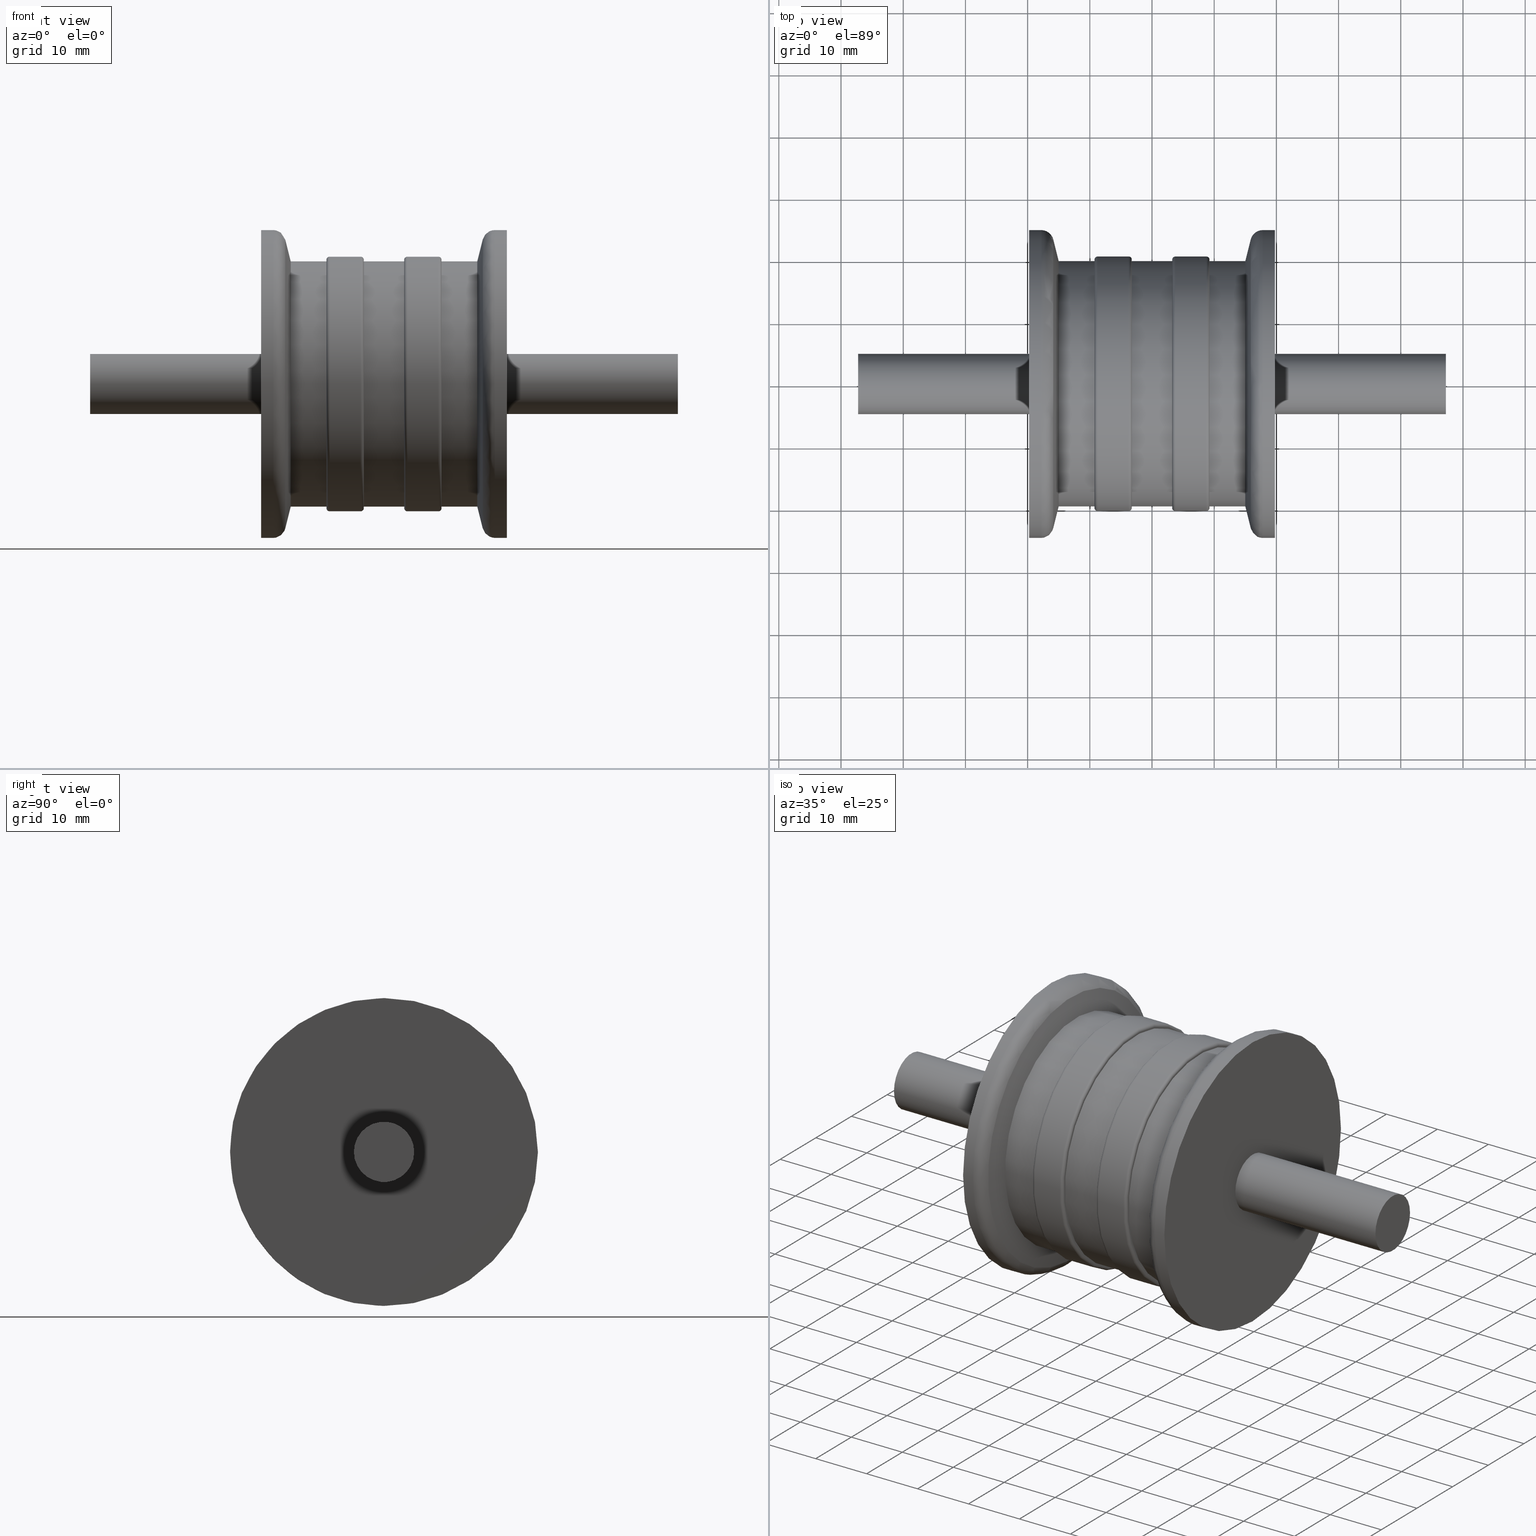
[diagram: canonical four-view strip — front | top / right | iso, engineering-drawing reading convention]
A machine part, canonical four-view strip (front | top / right | iso — engineering-drawing reading convention). The complete STEP part file that produces these views, byte-faithful:
ISO-10303-21;
HEADER;
/* Generated by software containing ST-Developer
 * from STEP Tools, Inc. (www.steptools.com) 
 */

FILE_DESCRIPTION(
/* description */ (''),
/* implementation_level */ '2;1');

FILE_NAME(
/* name */ 
'\\\\SYNOLOGYNAS\\web\\db2\\PR8-M10-D50-H40\\\X2\B3C4BA74\X0\\\PR8-M10
-D50-H40.stp',
/* time_stamp */ '2025-04-24T11:50:34+09:00',
/* author */ ('user'),
/* organization */ (''),
/* preprocessor_version */ 'ST-DEVELOPER v15.6',
/* originating_system */ 'Autodesk Inventor 2015',
/* authorisation */ '');

FILE_SCHEMA (('AUTOMOTIVE_DESIGN { 1 0 10303 214 3 1 1 }'));
ENDSEC;

DATA;
#10=MECHANICAL_DESIGN_GEOMETRIC_PRESENTATION_REPRESENTATION('',(#13),#509);
#11=SHAPE_REPRESENTATION_RELATIONSHIP('SRR','None',#518,#12);
#12=ADVANCED_BREP_SHAPE_REPRESENTATION($,(#14),#508);
#13=STYLED_ITEM('',(#527),#14);
#14=MANIFOLD_SOLID_BREP('\X2\C194B9ACB4DC\X0\1',#281);
#15=PLANE('',#302);
#16=PLANE('',#306);
#17=PLANE('',#313);
#18=PLANE('',#317);
#19=PLANE('',#319);
#20=PLANE('',#322);
#21=PLANE('',#325);
#22=PLANE('',#329);
#23=CONICAL_SURFACE('',#288,22.25,75.9637565320735);
#24=CONICAL_SURFACE('',#295,22.25,75.9637565320735);
#25=CYLINDRICAL_SURFACE('',#286,24.75);
#26=CYLINDRICAL_SURFACE('',#293,24.75);
#27=CYLINDRICAL_SURFACE('',#300,20.5);
#28=CYLINDRICAL_SURFACE('',#311,20.5);
#29=CYLINDRICAL_SURFACE('',#321,19.75);
#30=CYLINDRICAL_SURFACE('',#324,4.85);
#31=CYLINDRICAL_SURFACE('',#327,19.75);
#32=CYLINDRICAL_SURFACE('',#328,19.75);
#33=CYLINDRICAL_SURFACE('',#331,4.85);
#34=FACE_BOUND('',#83,.T.);
#35=FACE_BOUND('',#85,.T.);
#36=FACE_BOUND('',#87,.T.);
#37=FACE_BOUND('',#89,.T.);
#38=FACE_BOUND('',#91,.T.);
#39=FACE_BOUND('',#93,.T.);
#40=FACE_BOUND('',#95,.T.);
#41=FACE_BOUND('',#97,.T.);
#42=FACE_BOUND('',#99,.T.);
#43=FACE_BOUND('',#101,.T.);
#44=FACE_BOUND('',#103,.T.);
#45=FACE_BOUND('',#105,.T.);
#46=FACE_BOUND('',#107,.T.);
#47=FACE_BOUND('',#109,.T.);
#48=FACE_BOUND('',#111,.T.);
#49=FACE_BOUND('',#113,.T.);
#50=FACE_BOUND('',#115,.T.);
#51=FACE_BOUND('',#117,.T.);
#52=FACE_BOUND('',#120,.T.);
#53=FACE_BOUND('',#122,.T.);
#54=FACE_BOUND('',#124,.T.);
#55=FACE_BOUND('',#126,.T.);
#56=FACE_BOUND('',#129,.T.);
#57=FACE_OUTER_BOUND('',#82,.T.);
#58=FACE_OUTER_BOUND('',#84,.T.);
#59=FACE_OUTER_BOUND('',#86,.T.);
#60=FACE_OUTER_BOUND('',#88,.T.);
#61=FACE_OUTER_BOUND('',#90,.T.);
#62=FACE_OUTER_BOUND('',#92,.T.);
#63=FACE_OUTER_BOUND('',#94,.T.);
#64=FACE_OUTER_BOUND('',#96,.T.);
#65=FACE_OUTER_BOUND('',#98,.T.);
#66=FACE_OUTER_BOUND('',#100,.T.);
#67=FACE_OUTER_BOUND('',#102,.T.);
#68=FACE_OUTER_BOUND('',#104,.T.);
#69=FACE_OUTER_BOUND('',#106,.T.);
#70=FACE_OUTER_BOUND('',#108,.T.);
#71=FACE_OUTER_BOUND('',#110,.T.);
#72=FACE_OUTER_BOUND('',#112,.T.);
#73=FACE_OUTER_BOUND('',#114,.T.);
#74=FACE_OUTER_BOUND('',#116,.T.);
#75=FACE_OUTER_BOUND('',#118,.T.);
#76=FACE_OUTER_BOUND('',#119,.T.);
#77=FACE_OUTER_BOUND('',#121,.T.);
#78=FACE_OUTER_BOUND('',#123,.T.);
#79=FACE_OUTER_BOUND('',#125,.T.);
#80=FACE_OUTER_BOUND('',#127,.T.);
#81=FACE_OUTER_BOUND('',#128,.T.);
#82=EDGE_LOOP('',(#202));
#83=EDGE_LOOP('',(#203));
#84=EDGE_LOOP('',(#204));
#85=EDGE_LOOP('',(#205));
#86=EDGE_LOOP('',(#206));
#87=EDGE_LOOP('',(#207));
#88=EDGE_LOOP('',(#208));
#89=EDGE_LOOP('',(#209));
#90=EDGE_LOOP('',(#210));
#91=EDGE_LOOP('',(#211));
#92=EDGE_LOOP('',(#212));
#93=EDGE_LOOP('',(#213));
#94=EDGE_LOOP('',(#214));
#95=EDGE_LOOP('',(#215));
#96=EDGE_LOOP('',(#216));
#97=EDGE_LOOP('',(#217));
#98=EDGE_LOOP('',(#218));
#99=EDGE_LOOP('',(#219));
#100=EDGE_LOOP('',(#220));
#101=EDGE_LOOP('',(#221));
#102=EDGE_LOOP('',(#222));
#103=EDGE_LOOP('',(#223));
#104=EDGE_LOOP('',(#224));
#105=EDGE_LOOP('',(#225));
#106=EDGE_LOOP('',(#226));
#107=EDGE_LOOP('',(#227));
#108=EDGE_LOOP('',(#228));
#109=EDGE_LOOP('',(#229));
#110=EDGE_LOOP('',(#230));
#111=EDGE_LOOP('',(#231));
#112=EDGE_LOOP('',(#232));
#113=EDGE_LOOP('',(#233));
#114=EDGE_LOOP('',(#234));
#115=EDGE_LOOP('',(#235));
#116=EDGE_LOOP('',(#236));
#117=EDGE_LOOP('',(#237));
#118=EDGE_LOOP('',(#238));
#119=EDGE_LOOP('',(#239));
#120=EDGE_LOOP('',(#240));
#121=EDGE_LOOP('',(#241));
#122=EDGE_LOOP('',(#242));
#123=EDGE_LOOP('',(#243));
#124=EDGE_LOOP('',(#244));
#125=EDGE_LOOP('',(#245));
#126=EDGE_LOOP('',(#246));
#127=EDGE_LOOP('',(#247));
#128=EDGE_LOOP('',(#248));
#129=EDGE_LOOP('',(#249));
#130=CIRCLE('',#284,24.75);
#131=CIRCLE('',#285,23.2350712500727);
#132=CIRCLE('',#287,24.75);
#133=CIRCLE('',#289,19.75);
#134=CIRCLE('',#291,23.2350712500727);
#135=CIRCLE('',#292,24.75);
#136=CIRCLE('',#294,24.75);
#137=CIRCLE('',#296,19.75);
#138=CIRCLE('',#298,20.5);
#139=CIRCLE('',#299,20.);
#140=CIRCLE('',#301,20.5);
#141=CIRCLE('',#303,19.75);
#142=CIRCLE('',#305,20.);
#143=CIRCLE('',#307,19.75);
#144=CIRCLE('',#309,20.5);
#145=CIRCLE('',#310,20.);
#146=CIRCLE('',#312,20.5);
#147=CIRCLE('',#314,19.75);
#148=CIRCLE('',#316,20.);
#149=CIRCLE('',#318,19.75);
#150=CIRCLE('',#320,4.85);
#151=CIRCLE('',#323,4.85);
#152=CIRCLE('',#326,4.85);
#153=CIRCLE('',#330,4.85);
#154=VERTEX_POINT('',#434);
#155=VERTEX_POINT('',#436);
#156=VERTEX_POINT('',#439);
#157=VERTEX_POINT('',#442);
#158=VERTEX_POINT('',#445);
#159=VERTEX_POINT('',#447);
#160=VERTEX_POINT('',#450);
#161=VERTEX_POINT('',#453);
#162=VERTEX_POINT('',#456);
#163=VERTEX_POINT('',#458);
#164=VERTEX_POINT('',#461);
#165=VERTEX_POINT('',#464);
#166=VERTEX_POINT('',#467);
#167=VERTEX_POINT('',#470);
#168=VERTEX_POINT('',#473);
#169=VERTEX_POINT('',#475);
#170=VERTEX_POINT('',#478);
#171=VERTEX_POINT('',#481);
#172=VERTEX_POINT('',#484);
#173=VERTEX_POINT('',#487);
#174=VERTEX_POINT('',#490);
#175=VERTEX_POINT('',#494);
#176=VERTEX_POINT('',#498);
#177=VERTEX_POINT('',#503);
#178=EDGE_CURVE('',#154,#154,#130,.T.);
#179=EDGE_CURVE('',#155,#155,#131,.T.);
#180=EDGE_CURVE('',#156,#156,#132,.T.);
#181=EDGE_CURVE('',#157,#157,#133,.T.);
#182=EDGE_CURVE('',#158,#158,#134,.T.);
#183=EDGE_CURVE('',#159,#159,#135,.T.);
#184=EDGE_CURVE('',#160,#160,#136,.T.);
#185=EDGE_CURVE('',#161,#161,#137,.T.);
#186=EDGE_CURVE('',#162,#162,#138,.T.);
#187=EDGE_CURVE('',#163,#163,#139,.T.);
#188=EDGE_CURVE('',#164,#164,#140,.T.);
#189=EDGE_CURVE('',#165,#165,#141,.T.);
#190=EDGE_CURVE('',#166,#166,#142,.T.);
#191=EDGE_CURVE('',#167,#167,#143,.T.);
#192=EDGE_CURVE('',#168,#168,#144,.T.);
#193=EDGE_CURVE('',#169,#169,#145,.T.);
#194=EDGE_CURVE('',#170,#170,#146,.T.);
#195=EDGE_CURVE('',#171,#171,#147,.T.);
#196=EDGE_CURVE('',#172,#172,#148,.T.);
#197=EDGE_CURVE('',#173,#173,#149,.T.);
#198=EDGE_CURVE('',#174,#174,#150,.T.);
#199=EDGE_CURVE('',#175,#175,#151,.T.);
#200=EDGE_CURVE('',#176,#176,#152,.T.);
#201=EDGE_CURVE('',#177,#177,#153,.T.);
#202=ORIENTED_EDGE('',*,*,#178,.T.);
#203=ORIENTED_EDGE('',*,*,#179,.T.);
#204=ORIENTED_EDGE('',*,*,#180,.T.);
#205=ORIENTED_EDGE('',*,*,#178,.F.);
#206=ORIENTED_EDGE('',*,*,#181,.F.);
#207=ORIENTED_EDGE('',*,*,#179,.F.);
#208=ORIENTED_EDGE('',*,*,#182,.T.);
#209=ORIENTED_EDGE('',*,*,#183,.T.);
#210=ORIENTED_EDGE('',*,*,#184,.F.);
#211=ORIENTED_EDGE('',*,*,#183,.F.);
#212=ORIENTED_EDGE('',*,*,#185,.T.);
#213=ORIENTED_EDGE('',*,*,#182,.F.);
#214=ORIENTED_EDGE('',*,*,#186,.T.);
#215=ORIENTED_EDGE('',*,*,#187,.T.);
#216=ORIENTED_EDGE('',*,*,#188,.F.);
#217=ORIENTED_EDGE('',*,*,#186,.F.);
#218=ORIENTED_EDGE('',*,*,#187,.F.);
#219=ORIENTED_EDGE('',*,*,#189,.F.);
#220=ORIENTED_EDGE('',*,*,#190,.T.);
#221=ORIENTED_EDGE('',*,*,#188,.T.);
#222=ORIENTED_EDGE('',*,*,#190,.F.);
#223=ORIENTED_EDGE('',*,*,#191,.T.);
#224=ORIENTED_EDGE('',*,*,#192,.T.);
#225=ORIENTED_EDGE('',*,*,#193,.T.);
#226=ORIENTED_EDGE('',*,*,#194,.F.);
#227=ORIENTED_EDGE('',*,*,#192,.F.);
#228=ORIENTED_EDGE('',*,*,#193,.F.);
#229=ORIENTED_EDGE('',*,*,#195,.F.);
#230=ORIENTED_EDGE('',*,*,#196,.T.);
#231=ORIENTED_EDGE('',*,*,#194,.T.);
#232=ORIENTED_EDGE('',*,*,#196,.F.);
#233=ORIENTED_EDGE('',*,*,#197,.T.);
#234=ORIENTED_EDGE('',*,*,#184,.T.);
#235=ORIENTED_EDGE('',*,*,#198,.F.);
#236=ORIENTED_EDGE('',*,*,#185,.F.);
#237=ORIENTED_EDGE('',*,*,#189,.T.);
#238=ORIENTED_EDGE('',*,*,#199,.T.);
#239=ORIENTED_EDGE('',*,*,#199,.F.);
#240=ORIENTED_EDGE('',*,*,#198,.T.);
#241=ORIENTED_EDGE('',*,*,#180,.F.);
#242=ORIENTED_EDGE('',*,*,#200,.T.);
#243=ORIENTED_EDGE('',*,*,#181,.T.);
#244=ORIENTED_EDGE('',*,*,#197,.F.);
#245=ORIENTED_EDGE('',*,*,#191,.F.);
#246=ORIENTED_EDGE('',*,*,#195,.T.);
#247=ORIENTED_EDGE('',*,*,#201,.F.);
#248=ORIENTED_EDGE('',*,*,#201,.T.);
#249=ORIENTED_EDGE('',*,*,#200,.F.);
#250=TOROIDAL_SURFACE('',#283,22.75,2.);
#251=TOROIDAL_SURFACE('',#290,22.75,2.);
#252=TOROIDAL_SURFACE('',#297,20.,0.5);
#253=TOROIDAL_SURFACE('',#304,20.,0.5);
#254=TOROIDAL_SURFACE('',#308,20.,0.5);
#255=TOROIDAL_SURFACE('',#315,20.,0.5);
#256=ADVANCED_FACE('',(#57,#34),#250,.T.);
#257=ADVANCED_FACE('',(#58,#35),#25,.T.);
#258=ADVANCED_FACE('',(#59,#36),#23,.T.);
#259=ADVANCED_FACE('',(#60,#37),#251,.T.);
#260=ADVANCED_FACE('',(#61,#38),#26,.T.);
#261=ADVANCED_FACE('',(#62,#39),#24,.T.);
#262=ADVANCED_FACE('',(#63,#40),#252,.T.);
#263=ADVANCED_FACE('',(#64,#41),#27,.T.);
#264=ADVANCED_FACE('',(#65,#42),#15,.F.);
#265=ADVANCED_FACE('',(#66,#43),#253,.T.);
#266=ADVANCED_FACE('',(#67,#44),#16,.F.);
#267=ADVANCED_FACE('',(#68,#45),#254,.T.);
#268=ADVANCED_FACE('',(#69,#46),#28,.T.);
#269=ADVANCED_FACE('',(#70,#47),#17,.T.);
#270=ADVANCED_FACE('',(#71,#48),#255,.T.);
#271=ADVANCED_FACE('',(#72,#49),#18,.T.);
#272=ADVANCED_FACE('',(#73,#50),#19,.F.);
#273=ADVANCED_FACE('',(#74,#51),#29,.T.);
#274=ADVANCED_FACE('',(#75),#20,.F.);
#275=ADVANCED_FACE('',(#76,#52),#30,.T.);
#276=ADVANCED_FACE('',(#77,#53),#21,.T.);
#277=ADVANCED_FACE('',(#78,#54),#31,.T.);
#278=ADVANCED_FACE('',(#79,#55),#32,.T.);
#279=ADVANCED_FACE('',(#80),#22,.T.);
#280=ADVANCED_FACE('',(#81,#56),#33,.T.);
#281=CLOSED_SHELL('',(#256,#257,#258,#259,#260,#261,#262,#263,#264,#265,
#266,#267,#268,#269,#270,#271,#272,#273,#274,#275,#276,#277,#278,#279,#280));
#282=AXIS2_PLACEMENT_3D('placement',#432,#332,#333);
#283=AXIS2_PLACEMENT_3D('',#433,#334,#335);
#284=AXIS2_PLACEMENT_3D('',#435,#336,#337);
#285=AXIS2_PLACEMENT_3D('',#437,#338,#339);
#286=AXIS2_PLACEMENT_3D('',#438,#340,#341);
#287=AXIS2_PLACEMENT_3D('',#440,#342,#343);
#288=AXIS2_PLACEMENT_3D('',#441,#344,#345);
#289=AXIS2_PLACEMENT_3D('',#443,#346,#347);
#290=AXIS2_PLACEMENT_3D('',#444,#348,#349);
#291=AXIS2_PLACEMENT_3D('',#446,#350,#351);
#292=AXIS2_PLACEMENT_3D('',#448,#352,#353);
#293=AXIS2_PLACEMENT_3D('',#449,#354,#355);
#294=AXIS2_PLACEMENT_3D('',#451,#356,#357);
#295=AXIS2_PLACEMENT_3D('',#452,#358,#359);
#296=AXIS2_PLACEMENT_3D('',#454,#360,#361);
#297=AXIS2_PLACEMENT_3D('',#455,#362,#363);
#298=AXIS2_PLACEMENT_3D('',#457,#364,#365);
#299=AXIS2_PLACEMENT_3D('',#459,#366,#367);
#300=AXIS2_PLACEMENT_3D('',#460,#368,#369);
#301=AXIS2_PLACEMENT_3D('',#462,#370,#371);
#302=AXIS2_PLACEMENT_3D('',#463,#372,#373);
#303=AXIS2_PLACEMENT_3D('',#465,#374,#375);
#304=AXIS2_PLACEMENT_3D('',#466,#376,#377);
#305=AXIS2_PLACEMENT_3D('',#468,#378,#379);
#306=AXIS2_PLACEMENT_3D('',#469,#380,#381);
#307=AXIS2_PLACEMENT_3D('',#471,#382,#383);
#308=AXIS2_PLACEMENT_3D('',#472,#384,#385);
#309=AXIS2_PLACEMENT_3D('',#474,#386,#387);
#310=AXIS2_PLACEMENT_3D('',#476,#388,#389);
#311=AXIS2_PLACEMENT_3D('',#477,#390,#391);
#312=AXIS2_PLACEMENT_3D('',#479,#392,#393);
#313=AXIS2_PLACEMENT_3D('',#480,#394,#395);
#314=AXIS2_PLACEMENT_3D('',#482,#396,#397);
#315=AXIS2_PLACEMENT_3D('',#483,#398,#399);
#316=AXIS2_PLACEMENT_3D('',#485,#400,#401);
#317=AXIS2_PLACEMENT_3D('',#486,#402,#403);
#318=AXIS2_PLACEMENT_3D('',#488,#404,#405);
#319=AXIS2_PLACEMENT_3D('',#489,#406,#407);
#320=AXIS2_PLACEMENT_3D('',#491,#408,#409);
#321=AXIS2_PLACEMENT_3D('',#492,#410,#411);
#322=AXIS2_PLACEMENT_3D('',#493,#412,#413);
#323=AXIS2_PLACEMENT_3D('',#495,#414,#415);
#324=AXIS2_PLACEMENT_3D('',#496,#416,#417);
#325=AXIS2_PLACEMENT_3D('',#497,#418,#419);
#326=AXIS2_PLACEMENT_3D('',#499,#420,#421);
#327=AXIS2_PLACEMENT_3D('',#500,#422,#423);
#328=AXIS2_PLACEMENT_3D('',#501,#424,#425);
#329=AXIS2_PLACEMENT_3D('',#502,#426,#427);
#330=AXIS2_PLACEMENT_3D('',#504,#428,#429);
#331=AXIS2_PLACEMENT_3D('',#505,#430,#431);
#332=DIRECTION('axis',(0.,0.,1.));
#333=DIRECTION('refdir',(1.,0.,0.));
#334=DIRECTION('center_axis',(1.,2.24855296126614E-16,0.));
#335=DIRECTION('ref_axis',(0.,0.,-1.));
#336=DIRECTION('center_axis',(1.,2.24855296126614E-16,0.));
#337=DIRECTION('ref_axis',(2.24287479722254E-16,-1.,1.83697019872103E-16));
#338=DIRECTION('center_axis',(-1.,-2.86693252456891E-16,3.53424506488075E-32));
#339=DIRECTION('ref_axis',(2.86693252456891E-16,-1.,3.06161699786838E-17));
#340=DIRECTION('center_axis',(1.,2.24855296126614E-16,0.));
#341=DIRECTION('ref_axis',(-2.24855296126614E-16,1.,0.));
#342=DIRECTION('center_axis',(1.,2.24855296126614E-16,0.));
#343=DIRECTION('ref_axis',(0.,0.,-1.));
#344=DIRECTION('center_axis',(-1.,-2.24855296126614E-16,0.));
#345=DIRECTION('ref_axis',(-2.24855296126614E-16,1.,0.));
#346=DIRECTION('center_axis',(1.,2.24855296126614E-16,0.));
#347=DIRECTION('ref_axis',(0.,0.,-1.));
#348=DIRECTION('center_axis',(1.,2.24855296126614E-16,0.));
#349=DIRECTION('ref_axis',(0.,0.,-1.));
#350=DIRECTION('center_axis',(1.,1.91128834971261E-16,-3.79100879388468E-32));
#351=DIRECTION('ref_axis',(1.91128834971261E-16,-1.,3.06161699786838E-17));
#352=DIRECTION('center_axis',(-1.,-2.24855296126614E-16,0.));
#353=DIRECTION('ref_axis',(2.24287479722254E-16,-1.,1.83697019872103E-16));
#354=DIRECTION('center_axis',(1.,2.24855296126614E-16,0.));
#355=DIRECTION('ref_axis',(-2.24855296126614E-16,1.,0.));
#356=DIRECTION('center_axis',(1.,2.24855296126614E-16,0.));
#357=DIRECTION('ref_axis',(0.,0.,-1.));
#358=DIRECTION('center_axis',(1.,2.24855296126614E-16,0.));
#359=DIRECTION('ref_axis',(-2.24855296126614E-16,1.,0.));
#360=DIRECTION('center_axis',(1.,2.24855296126614E-16,0.));
#361=DIRECTION('ref_axis',(0.,0.,-1.));
#362=DIRECTION('center_axis',(1.,2.24855296126614E-16,0.));
#363=DIRECTION('ref_axis',(0.,0.,-1.));
#364=DIRECTION('center_axis',(1.,2.24855296126614E-16,0.));
#365=DIRECTION('ref_axis',(2.23398535442867E-16,-1.,1.83697019872103E-16));
#366=DIRECTION('center_axis',(-1.,-2.24855296126614E-16,0.));
#367=DIRECTION('ref_axis',(2.24855296126614E-16,-1.,1.83697019872103E-16));
#368=DIRECTION('center_axis',(1.,2.24855296126614E-16,0.));
#369=DIRECTION('ref_axis',(-2.24855296126614E-16,1.,0.));
#370=DIRECTION('center_axis',(-1.,-2.24855296126614E-16,0.));
#371=DIRECTION('ref_axis',(2.23398535442867E-16,-1.,1.83697019872103E-16));
#372=DIRECTION('center_axis',(-1.,-2.24855296126614E-16,0.));
#373=DIRECTION('ref_axis',(0.,0.,1.));
#374=DIRECTION('center_axis',(1.,2.24855296126614E-16,0.));
#375=DIRECTION('ref_axis',(0.,0.,-1.));
#376=DIRECTION('center_axis',(1.,2.24855296126614E-16,0.));
#377=DIRECTION('ref_axis',(0.,0.,-1.));
#378=DIRECTION('center_axis',(1.,2.24855296126614E-16,0.));
#379=DIRECTION('ref_axis',(2.24855296126614E-16,-1.,1.83697019872103E-16));
#380=DIRECTION('center_axis',(1.,2.24855296126614E-16,0.));
#381=DIRECTION('ref_axis',(0.,0.,-1.));
#382=DIRECTION('center_axis',(1.,2.24855296126614E-16,0.));
#383=DIRECTION('ref_axis',(0.,0.,-1.));
#384=DIRECTION('center_axis',(1.,2.24855296126614E-16,0.));
#385=DIRECTION('ref_axis',(0.,0.,-1.));
#386=DIRECTION('center_axis',(1.,2.24855296126614E-16,0.));
#387=DIRECTION('ref_axis',(2.23398535442867E-16,-1.,1.83697019872103E-16));
#388=DIRECTION('center_axis',(-1.,-2.24855296126614E-16,0.));
#389=DIRECTION('ref_axis',(2.24855296126614E-16,-1.,1.83697019872103E-16));
#390=DIRECTION('center_axis',(1.,2.24855296126614E-16,0.));
#391=DIRECTION('ref_axis',(-2.24855296126614E-16,1.,0.));
#392=DIRECTION('center_axis',(-1.,-2.24855296126614E-16,0.));
#393=DIRECTION('ref_axis',(2.23398535442867E-16,-1.,1.83697019872103E-16));
#394=DIRECTION('center_axis',(1.,2.24855296126614E-16,0.));
#395=DIRECTION('ref_axis',(0.,0.,-1.));
#396=DIRECTION('center_axis',(1.,2.24855296126614E-16,0.));
#397=DIRECTION('ref_axis',(0.,0.,-1.));
#398=DIRECTION('center_axis',(1.,2.24855296126614E-16,0.));
#399=DIRECTION('ref_axis',(0.,0.,-1.));
#400=DIRECTION('center_axis',(1.,2.24855296126614E-16,0.));
#401=DIRECTION('ref_axis',(2.24855296126614E-16,-1.,1.83697019872103E-16));
#402=DIRECTION('center_axis',(-1.,-2.24855296126614E-16,0.));
#403=DIRECTION('ref_axis',(0.,0.,1.));
#404=DIRECTION('center_axis',(1.,2.24855296126614E-16,0.));
#405=DIRECTION('ref_axis',(0.,0.,-1.));
#406=DIRECTION('center_axis',(-1.,-2.24855296126614E-16,0.));
#407=DIRECTION('ref_axis',(0.,0.,1.));
#408=DIRECTION('center_axis',(1.,2.24855296126614E-16,0.));
#409=DIRECTION('ref_axis',(0.,0.,-1.));
#410=DIRECTION('center_axis',(1.,2.24855296126614E-16,0.));
#411=DIRECTION('ref_axis',(-2.24855296126614E-16,1.,0.));
#412=DIRECTION('center_axis',(-1.,-2.24855296126614E-16,0.));
#413=DIRECTION('ref_axis',(0.,0.,1.));
#414=DIRECTION('center_axis',(1.,2.24855296126614E-16,0.));
#415=DIRECTION('ref_axis',(0.,0.,-1.));
#416=DIRECTION('center_axis',(1.,2.24855296126614E-16,0.));
#417=DIRECTION('ref_axis',(-4.49710592253228E-16,1.,0.));
#418=DIRECTION('center_axis',(-1.,-2.24855296126614E-16,0.));
#419=DIRECTION('ref_axis',(0.,0.,1.));
#420=DIRECTION('center_axis',(1.,2.24855296126614E-16,0.));
#421=DIRECTION('ref_axis',(0.,0.,-1.));
#422=DIRECTION('center_axis',(1.,2.24855296126614E-16,0.));
#423=DIRECTION('ref_axis',(-2.24855296126614E-16,1.,0.));
#424=DIRECTION('center_axis',(1.,2.24855296126614E-16,0.));
#425=DIRECTION('ref_axis',(-2.24855296126614E-16,1.,0.));
#426=DIRECTION('center_axis',(-1.,-2.24855296126614E-16,0.));
#427=DIRECTION('ref_axis',(0.,0.,1.));
#428=DIRECTION('center_axis',(1.,2.24855296126614E-16,0.));
#429=DIRECTION('ref_axis',(0.,0.,-1.));
#430=DIRECTION('center_axis',(1.,2.24855296126614E-16,0.));
#431=DIRECTION('ref_axis',(0.,1.,0.));
#432=CARTESIAN_POINT('',(0.,0.,0.));
#433=CARTESIAN_POINT('Origin',(-17.8115528128088,-4.00502198219895E-15,
0.));
#434=CARTESIAN_POINT('',(-17.8115528128088,24.75,-1.51550041394485E-15));
#435=CARTESIAN_POINT('Origin',(-17.8115528128088,-4.00502198219895E-15,
0.));
#436=CARTESIAN_POINT('',(-15.8712678125182,23.2350712500727,-7.11368890859054E-15));
#437=CARTESIAN_POINT('Origin',(-15.8712678125182,-4.44089209850063E-15,
-3.55684445429527E-15));
#438=CARTESIAN_POINT('Origin',(-18.,-4.04739533027905E-15,0.));
#439=CARTESIAN_POINT('',(-19.75,24.75,0.));
#440=CARTESIAN_POINT('Origin',(-19.75,-4.44089209850062E-15,0.));
#441=CARTESIAN_POINT('Origin',(-15.625,-3.51336400197834E-15,0.));
#442=CARTESIAN_POINT('',(-15.,19.75,0.));
#443=CARTESIAN_POINT('Origin',(-15.,-3.37282944189921E-15,0.));
#444=CARTESIAN_POINT('Origin',(17.8115528128088,4.00502198219895E-15,0.));
#445=CARTESIAN_POINT('',(15.8712678125182,23.2350712500727,-1.42273778171811E-15));
#446=CARTESIAN_POINT('Origin',(15.8712678125182,4.44089209850063E-15,-3.55684445429527E-15));
#447=CARTESIAN_POINT('',(17.8115528128088,24.75,-7.57750206972425E-15));
#448=CARTESIAN_POINT('Origin',(17.8115528128088,4.00502198219895E-15,0.));
#449=CARTESIAN_POINT('Origin',(18.,4.04739533027905E-15,0.));
#450=CARTESIAN_POINT('',(19.75,24.75,0.));
#451=CARTESIAN_POINT('Origin',(19.75,4.44089209850062E-15,0.));
#452=CARTESIAN_POINT('Origin',(15.625,3.51336400197834E-15,0.));
#453=CARTESIAN_POINT('',(15.,19.75,0.));
#454=CARTESIAN_POINT('Origin',(15.,3.37282944189921E-15,0.));
#455=CARTESIAN_POINT('Origin',(8.75,1.96748384110787E-15,0.));
#456=CARTESIAN_POINT('',(8.75,20.5,-1.25526296912604E-15));
#457=CARTESIAN_POINT('Origin',(8.75,1.96748384110787E-15,0.));
#458=CARTESIAN_POINT('',(9.25,20.,-6.12323399573677E-15));
#459=CARTESIAN_POINT('Origin',(9.25,2.07991148917118E-15,0.));
#460=CARTESIAN_POINT('Origin',(6.25,1.40534560079134E-15,0.));
#461=CARTESIAN_POINT('',(3.75,20.5,-6.27631484563019E-15));
#462=CARTESIAN_POINT('Origin',(3.75,8.43207360474803E-16,0.));
#463=CARTESIAN_POINT('Origin',(9.25,20.5,0.));
#464=CARTESIAN_POINT('',(9.25,19.75,0.));
#465=CARTESIAN_POINT('Origin',(9.25,2.07991148917118E-15,0.));
#466=CARTESIAN_POINT('Origin',(3.75,8.43207360474803E-16,0.));
#467=CARTESIAN_POINT('',(3.25,20.,-1.22464679914735E-15));
#468=CARTESIAN_POINT('Origin',(3.25,7.30779712411496E-16,0.));
#469=CARTESIAN_POINT('Origin',(3.25,19.75,0.));
#470=CARTESIAN_POINT('',(3.25,19.75,0.));
#471=CARTESIAN_POINT('Origin',(3.25,7.30779712411496E-16,0.));
#472=CARTESIAN_POINT('Origin',(-3.75,-8.43207360474803E-16,0.));
#473=CARTESIAN_POINT('',(-3.75000000000001,20.5,-1.25526296912604E-15));
#474=CARTESIAN_POINT('Origin',(-3.75,-8.43207360474803E-16,0.));
#475=CARTESIAN_POINT('',(-3.25000000000001,20.,-6.12323399573677E-15));
#476=CARTESIAN_POINT('Origin',(-3.25,-7.30779712411496E-16,0.));
#477=CARTESIAN_POINT('Origin',(-6.25,-1.40534560079134E-15,0.));
#478=CARTESIAN_POINT('',(-8.75000000000001,20.5,-6.27631484563019E-15));
#479=CARTESIAN_POINT('Origin',(-8.75,-1.96748384110787E-15,0.));
#480=CARTESIAN_POINT('Origin',(-3.25000000000001,19.75,0.));
#481=CARTESIAN_POINT('',(-3.25000000000001,19.75,0.));
#482=CARTESIAN_POINT('Origin',(-3.25,-7.30779712411496E-16,0.));
#483=CARTESIAN_POINT('Origin',(-8.75,-1.96748384110787E-15,0.));
#484=CARTESIAN_POINT('',(-9.25000000000001,20.,-1.22464679914735E-15));
#485=CARTESIAN_POINT('Origin',(-9.25,-2.07991148917118E-15,0.));
#486=CARTESIAN_POINT('Origin',(-9.25000000000001,20.5,0.));
#487=CARTESIAN_POINT('',(-9.25000000000001,19.75,0.));
#488=CARTESIAN_POINT('Origin',(-9.25,-2.07991148917118E-15,0.));
#489=CARTESIAN_POINT('Origin',(19.75,24.75,0.));
#490=CARTESIAN_POINT('',(19.75,4.85,0.));
#491=CARTESIAN_POINT('Origin',(19.75,4.44089209850063E-15,0.));
#492=CARTESIAN_POINT('Origin',(12.125,2.72637046553519E-15,0.));
#493=CARTESIAN_POINT('Origin',(47.25,4.85000000000001,0.));
#494=CARTESIAN_POINT('',(47.25,4.85000000000001,0.));
#495=CARTESIAN_POINT('Origin',(47.25,1.06244127419825E-14,0.));
#496=CARTESIAN_POINT('Origin',(33.5,7.53265242024157E-15,0.));
#497=CARTESIAN_POINT('Origin',(-19.75,24.75,0.));
#498=CARTESIAN_POINT('',(-19.75,4.84999999999999,0.));
#499=CARTESIAN_POINT('Origin',(-19.75,-4.44089209850063E-15,0.));
#500=CARTESIAN_POINT('Origin',(-12.125,-2.72637046553519E-15,0.));
#501=CARTESIAN_POINT('Origin',(-1.625,-3.65389856205747E-16,0.));
#502=CARTESIAN_POINT('Origin',(-47.25,4.84999999999999,0.));
#503=CARTESIAN_POINT('',(-47.25,4.84999999999999,0.));
#504=CARTESIAN_POINT('Origin',(-47.25,-1.06244127419825E-14,0.));
#505=CARTESIAN_POINT('Origin',(-33.5,-7.53265242024157E-15,0.));
#506=UNCERTAINTY_MEASURE_WITH_UNIT(LENGTH_MEASURE(0.01),#510,
'DISTANCE_ACCURACY_VALUE',
'Maximum model space distance between geometric entities at asserted c
onnectivities');
#507=UNCERTAINTY_MEASURE_WITH_UNIT(LENGTH_MEASURE(1.E-6),#510,
'DISTANCE_ACCURACY_VALUE',
'Maximum model space distance between geometric entities at asserted c
onnectivities');
#508=(
GEOMETRIC_REPRESENTATION_CONTEXT(3)
GLOBAL_UNCERTAINTY_ASSIGNED_CONTEXT((#506))
GLOBAL_UNIT_ASSIGNED_CONTEXT((#510,#513,#511))
REPRESENTATION_CONTEXT('','3D')
);
#509=(
GEOMETRIC_REPRESENTATION_CONTEXT(3)
GLOBAL_UNCERTAINTY_ASSIGNED_CONTEXT((#507))
GLOBAL_UNIT_ASSIGNED_CONTEXT((#510,#513,#511))
REPRESENTATION_CONTEXT('','3D')
);
#510=(
LENGTH_UNIT()
NAMED_UNIT(*)
SI_UNIT(.MILLI.,.METRE.)
);
#511=(
NAMED_UNIT(*)
SI_UNIT($,.STERADIAN.)
SOLID_ANGLE_UNIT()
);
#512=DIMENSIONAL_EXPONENTS(0.,0.,0.,0.,0.,0.,0.);
#513=(
CONVERSION_BASED_UNIT('degree',#515)
NAMED_UNIT(#512)
PLANE_ANGLE_UNIT()
);
#514=(
NAMED_UNIT(*)
PLANE_ANGLE_UNIT()
SI_UNIT($,.RADIAN.)
);
#515=PLANE_ANGLE_MEASURE_WITH_UNIT(PLANE_ANGLE_MEASURE(0.01745329252),#514);
#516=SHAPE_DEFINITION_REPRESENTATION(#517,#518);
#517=PRODUCT_DEFINITION_SHAPE('',$,#520);
#518=SHAPE_REPRESENTATION('',(#282),#508);
#519=PRODUCT_DEFINITION_CONTEXT('part definition',#524,'design');
#520=PRODUCT_DEFINITION('PR8-M10-D50-H40','PR8-M10-D50-H40',#521,#519);
#521=PRODUCT_DEFINITION_FORMATION('',$,#526);
#522=PRODUCT_RELATED_PRODUCT_CATEGORY('PR8-M10-D50-H40',
'PR8-M10-D50-H40',(#526));
#523=APPLICATION_PROTOCOL_DEFINITION('international standard',
'automotive_design',2009,#524);
#524=APPLICATION_CONTEXT(
'Core Data for Automotive Mechanical Design Process');
#525=PRODUCT_CONTEXT('part definition',#524,'mechanical');
#526=PRODUCT('PR8-M10-D50-H40','PR8-M10-D50-H40',$,(#525));
#527=PRESENTATION_STYLE_ASSIGNMENT((#528));
#528=SURFACE_STYLE_USAGE(.BOTH.,#529);
#529=SURFACE_SIDE_STYLE($,(#530));
#530=SURFACE_STYLE_FILL_AREA(#531);
#531=FILL_AREA_STYLE($,(#532));
#532=FILL_AREA_STYLE_COLOUR($,#533);
#533=COLOUR_RGB('',1.,1.,1.);
ENDSEC;
END-ISO-10303-21;
